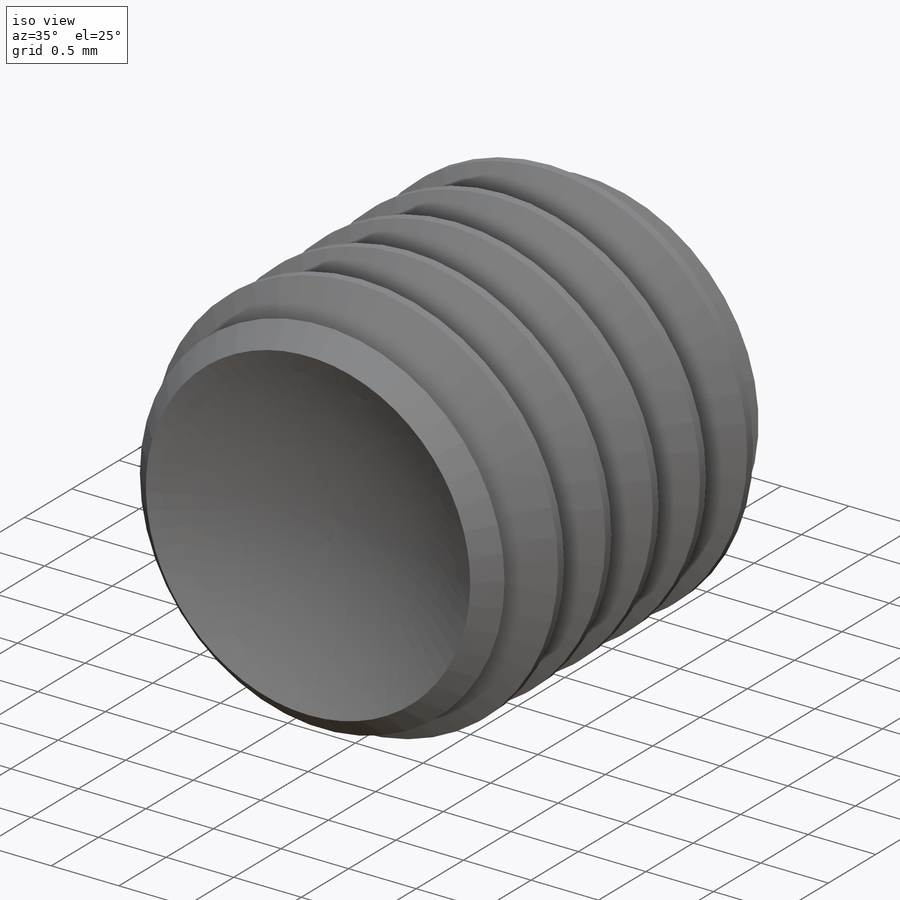
[diagram: iso view]
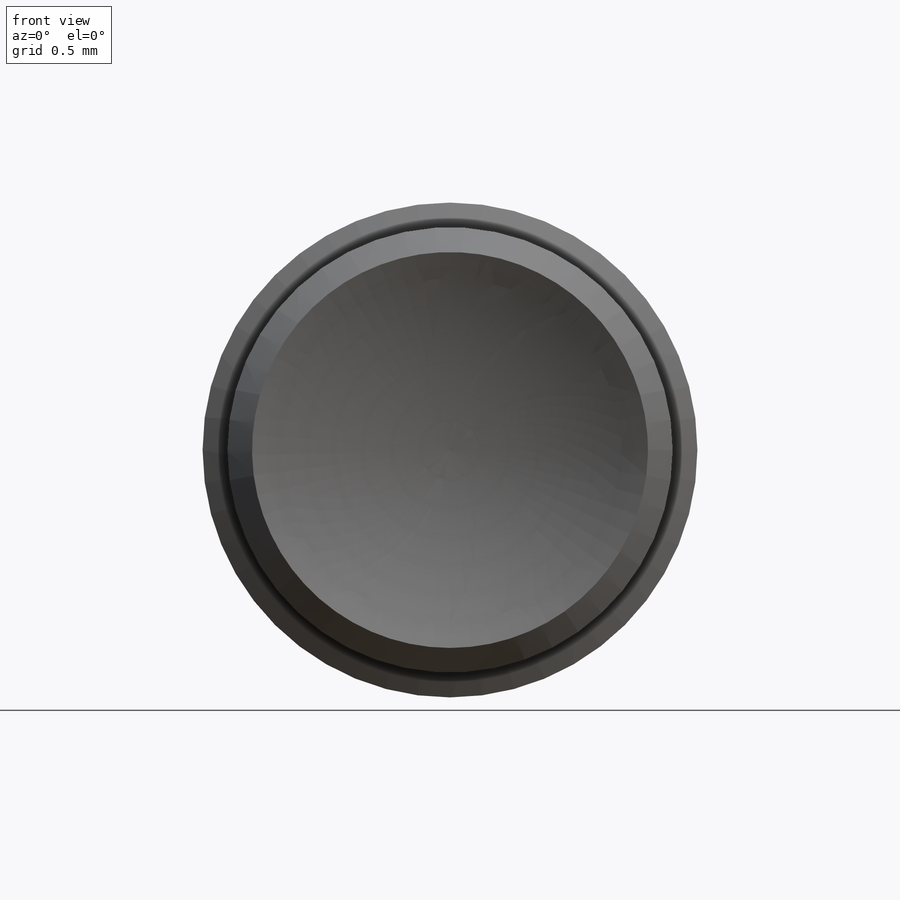
[diagram: front view]
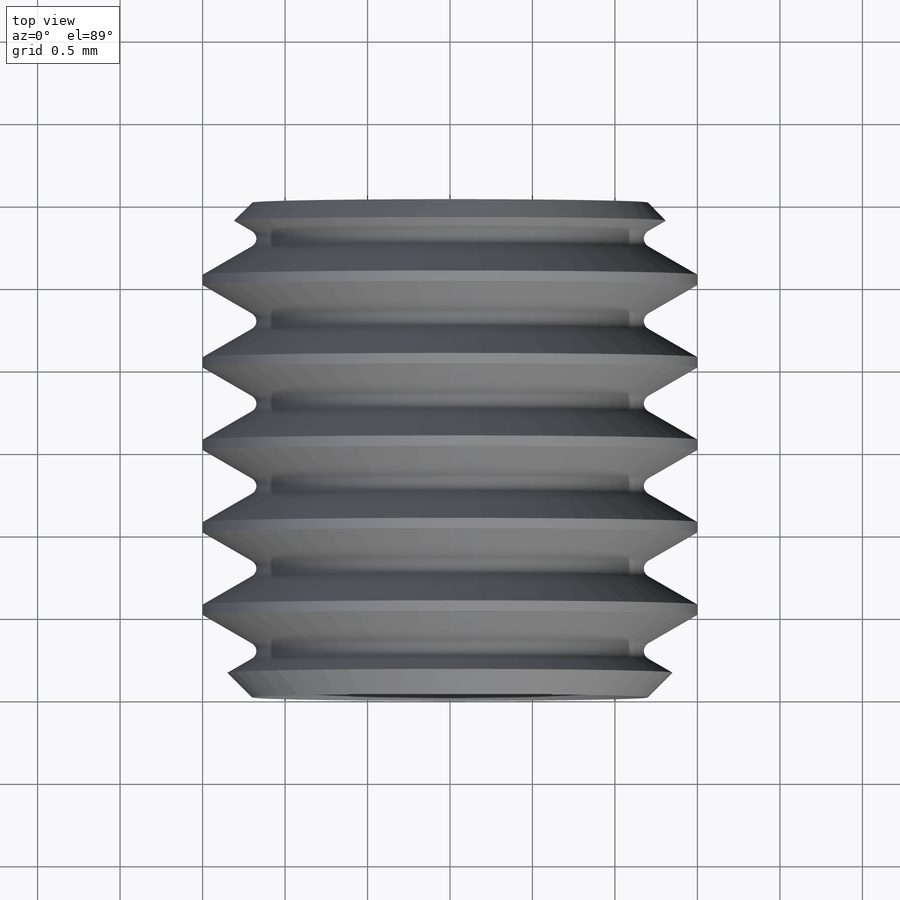
[diagram: top view]
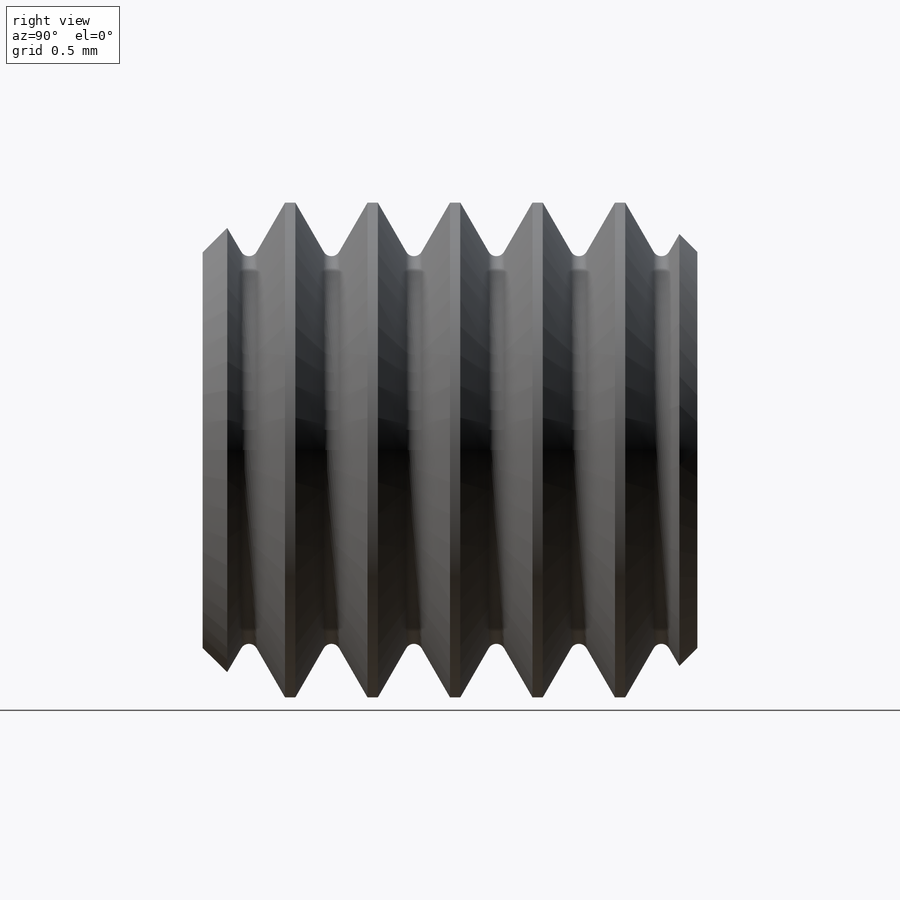
[diagram: right view]
SOLIDWORKS PART (.sldprt)
format: sldprt  version: not decoded by parser v0  size: 939,008 bytes
history: native  units: mm
features: sketch x15, plane x6, cut_revolve x5, material x1, revolve x1, pattern_linear x1, helix x1, sweep x1, cut_extrude x1 (+11 scaffold rows collapsed)
feature tree (43):
  scaffold x11  (default folders/planes/origin — collapsed)
  material  "Material <not specified>"
  sketch  "support-front-body"  dims[diam-outer=3.0mm]
  sketch  "support-right-body"  dims[length=3.0mm]
  sketch  "support-right-chamfer"  dims[c1.height-chamfer-start=1.0mm c1.D2=~1.345239mm c1.angle-chamfer-start=45.0deg c1.height-chamfer-end=1.0mm c1.D4=~1.635005mm c1.angle-chamfer-end=45.0deg c2.height-chamfer-start=~1.414214mm c3.height-chamfer-start=0.3mm c3.height-chamfer-end=~1.414214mm c4.height-chamfer-end=0.3mm]
  sketch  "support-right-thread"  dims[c1.D1=~2.050483mm c1.angle-thread=60.0deg c1.pitch-thread=0.5mm c2.D1=~0.285398mm c2.width-thread-bottom=0.125mm c2.width-thread-top=0.0625mm c2.dist-thread=3.0mm c2.length-thread=3.0mm]
  sketch  "support-right-head-key"  dims[D1=2.0mm angle-chamfer-head=30.0deg height-cut-head-bottom=~0.388802mm depth-key=1.5mm]
  sketch  "support-front-head-key"  dims[width-key=1.5mm]
  plane  "ref-plane-start"
  plane  "ref-plane-end"
  plane  "ref-plane-thread-start"
  plane  "ref-plane-thread-end"
  plane  "ref-plane-head-key-start"
  plane  "ref-plane-head-key-end"
  sketch  "Sketch5"
  revolve  "body"  Angle=360deg
  sketch  "Sketch11"
  cut_revolve  "cut-chamfer-start"  Angle=360deg
  sketch  "Sketch13"
  cut_revolve  "cut-chamfer-end"  Angle=360deg
  sketch  "Sketch8"
  cut_revolve  "thread-single"  Angle=360deg
  pattern_linear  "thread-simple"  Count1=7 Count2=1 Spacing1=0.5mm Spacing2=50mm num-thread=7 pitch-thread=0.5mm
  sketch  "Sketch9"
  helix  "helix"  Pitch=3mm length-thread=3mm pitch-thread=0.5mm num-thread=6 angle-thread-start=270deg
  sketch  "Sketch10"
  sweep  "thread-helix"
  sketch  "Sketch22"
  cut_revolve  "cut-no-thread"  Angle=360deg
  sketch  "Sketch25"
  cut_extrude  "cut-head-key"  [1 undecoded]
  sketch  "Sketch26"
  cut_revolve  "cut-buttom"  Angle=360deg
decode coverage: 14 of 25 modeling features carry decoded parameters
note: ~ marks probable driven/reference dimensions
note: 1 parameter value undecoded
note: suppression state not decoded; provenance and decode notes live in map.json
